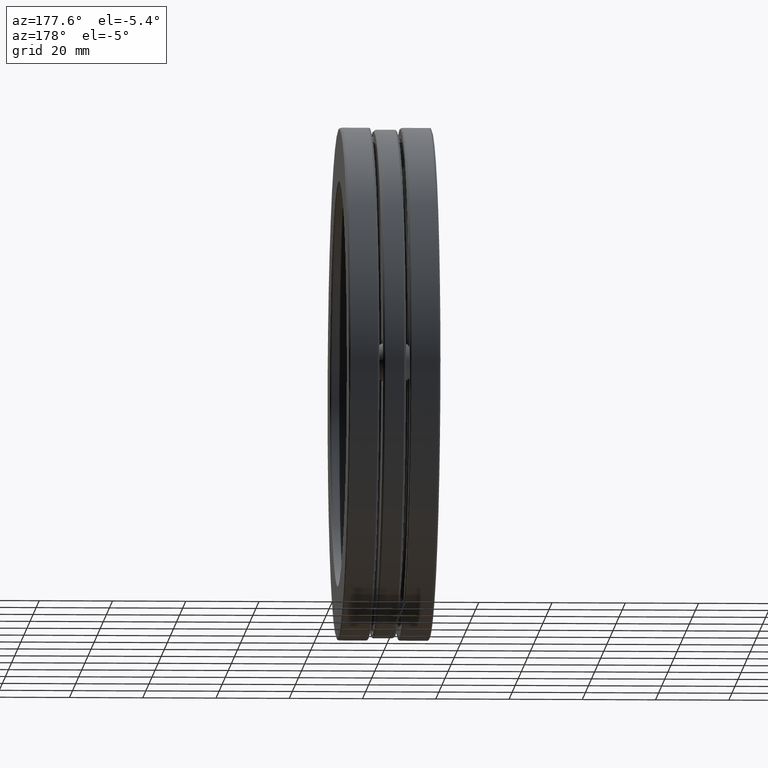
[diagram: clean part render]
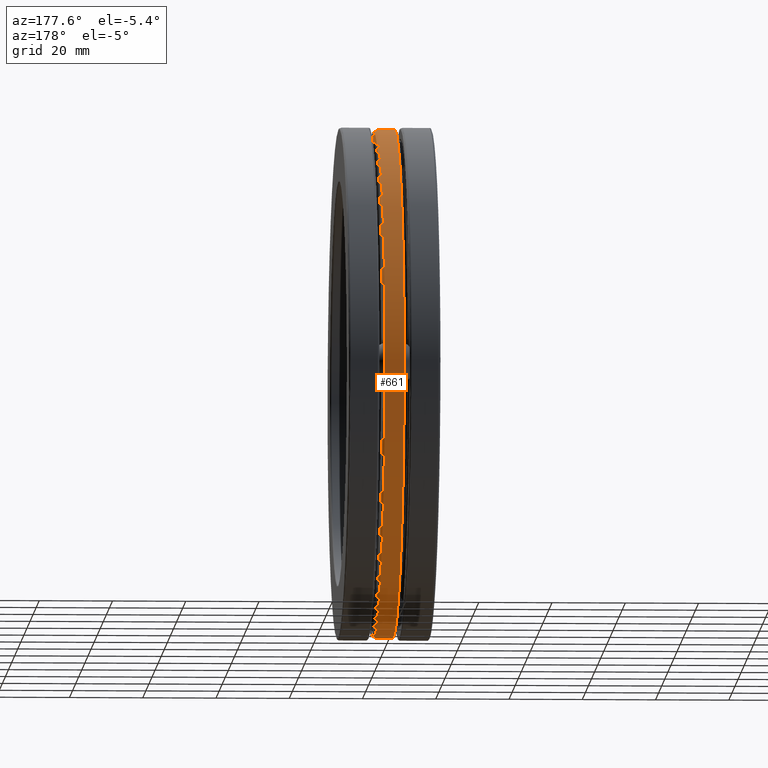
[diagram: same view with one face highlighted and labeled with its STEP entity id]
A machine part, auxiliary view. The second image highlights one B-rep face of the part: STEP entity #661.
In plain terms, the highlighted cylindrical surface (bore or boss wall) has radius 69.4944 mm, axis along (-1, -0, -0).
Its self-contained STEP definition (entity closure, byte-faithful):
#7 = DIRECTION ( 'NONE',  ( -1.000000000000000000, -0.0000000000000000000, -0.0000000000000000000 ) ) ;
#95 = DIRECTION ( 'NONE',  ( -1.000000000000000000, -0.0000000000000000000, -0.0000000000000000000 ) ) ;
#158 = ORIENTED_EDGE ( 'NONE', *, *, #386, .T. ) ;
#199 = CARTESIAN_POINT ( 'NONE',  ( -0.1030000000000000400, 0.0000000000000000000, 0.0000000000000000000 ) ) ;
#212 = EDGE_LOOP ( 'NONE', ( #542 ) ) ;
#240 = CARTESIAN_POINT ( 'NONE',  ( 0.1029999999999999700, 0.0000000000000000000, 2.736000000000000200 ) ) ;
#306 = EDGE_CURVE ( 'NONE', #743, #743, #558, .T. ) ;
#308 = CARTESIAN_POINT ( 'NONE',  ( -0.1030000000000000400, 0.0000000000000000000, 2.736000000000000200 ) ) ;
#327 = FACE_OUTER_BOUND ( 'NONE', #768, .T. ) ;
#364 = AXIS2_PLACEMENT_3D ( 'NONE', #667, #95, #670 ) ;
#386 = EDGE_CURVE ( 'NONE', #549, #549, #779, .T. ) ;
#478 = CYLINDRICAL_SURFACE ( 'NONE', #364, 2.736000000000000200 ) ;
#481 = DIRECTION ( 'NONE',  ( 0.0000000000000000000, 0.0000000000000000000, 1.000000000000000000 ) ) ;
#510 = DIRECTION ( 'NONE',  ( 0.0000000000000000000, 0.0000000000000000000, 1.000000000000000000 ) ) ;
#542 = ORIENTED_EDGE ( 'NONE', *, *, #306, .F. ) ;
#549 = VERTEX_POINT ( 'NONE', #240 ) ;
#558 = CIRCLE ( 'NONE', #655, 2.736000000000000200 ) ;
#615 = FACE_OUTER_BOUND ( 'NONE', #212, .T. ) ;
#655 = AXIS2_PLACEMENT_3D ( 'NONE', #199, #774, #481 ) ;
#661 = ADVANCED_FACE ( 'NONE', ( #327, #615 ), #478, .T. ) ;
#667 = CARTESIAN_POINT ( 'NONE',  ( 0.0000000000000000000, 0.0000000000000000000, 0.0000000000000000000 ) ) ;
#670 = DIRECTION ( 'NONE',  ( 0.0000000000000000000, 0.0000000000000000000, 1.000000000000000000 ) ) ;
#674 = AXIS2_PLACEMENT_3D ( 'NONE', #703, #7, #510 ) ;
#703 = CARTESIAN_POINT ( 'NONE',  ( 0.1029999999999999700, 0.0000000000000000000, 0.0000000000000000000 ) ) ;
#743 = VERTEX_POINT ( 'NONE', #308 ) ;
#768 = EDGE_LOOP ( 'NONE', ( #158 ) ) ;
#774 = DIRECTION ( 'NONE',  ( -1.000000000000000000, -0.0000000000000000000, -0.0000000000000000000 ) ) ;
#779 = CIRCLE ( 'NONE', #674, 2.736000000000000200 ) ;